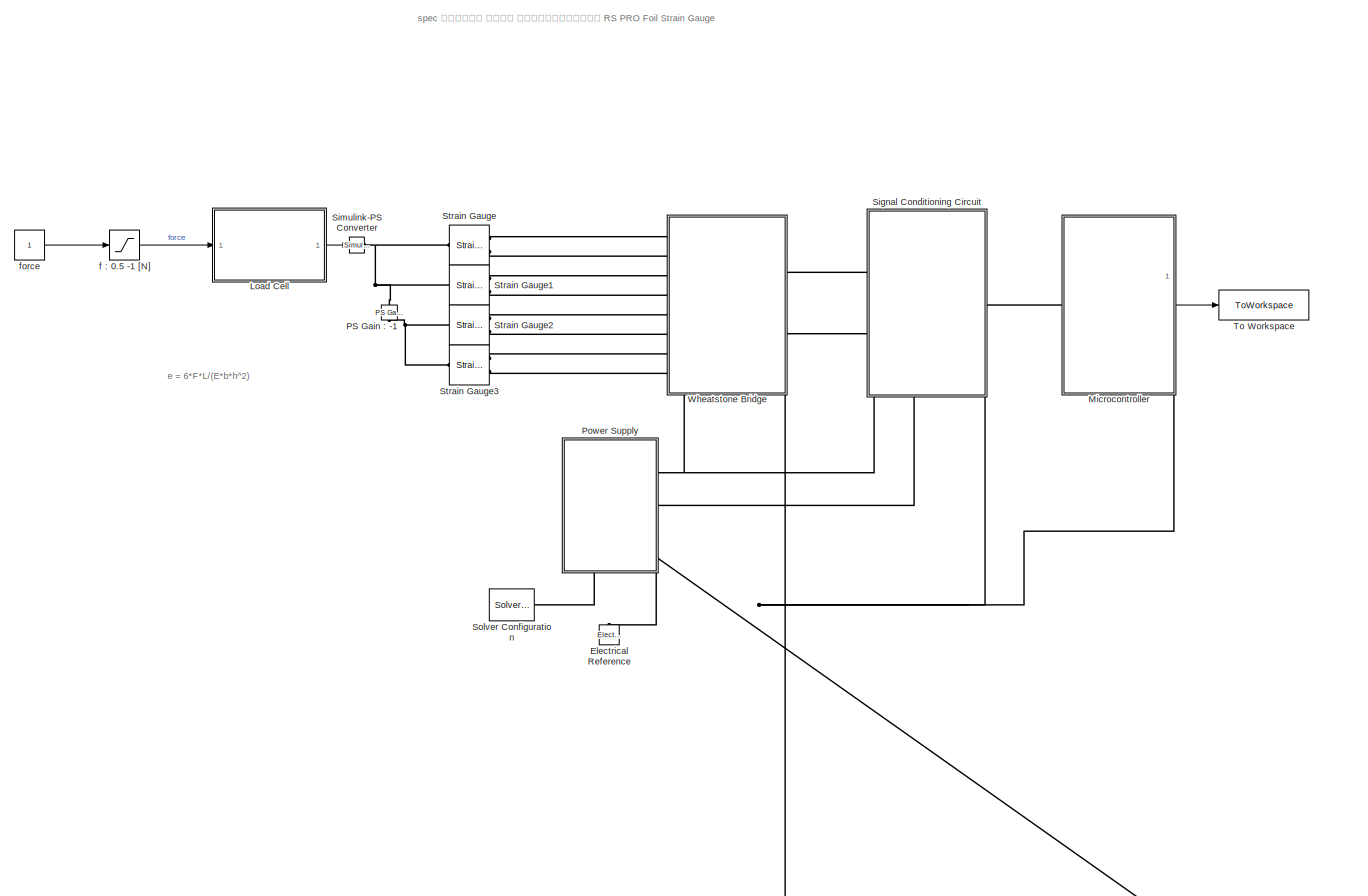
[diagram: root canvas - part 1/1, most of the canvas]
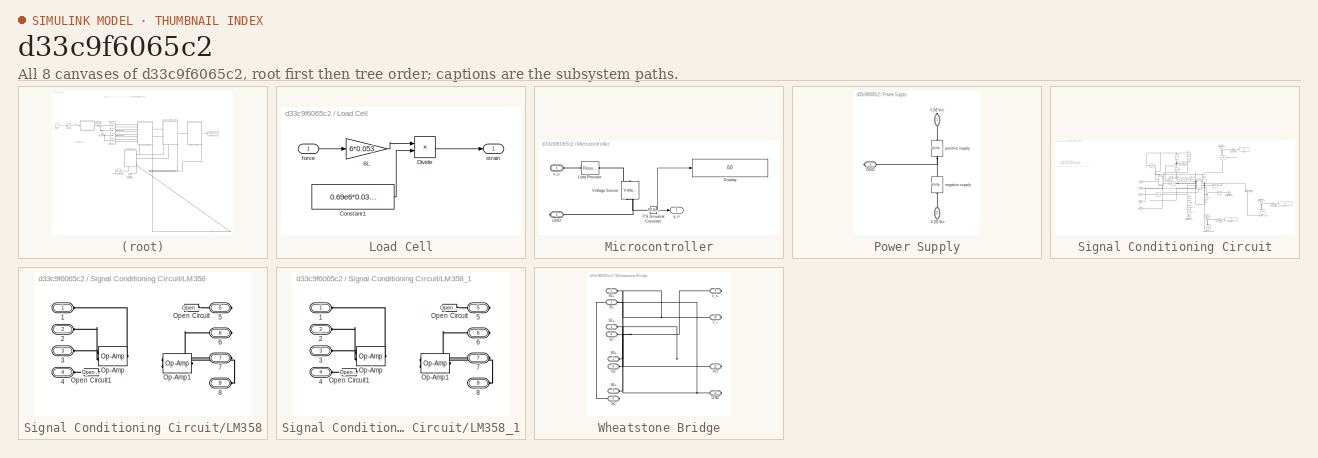
[diagram: thumbnail index - all 8 canvases of the model, root first then tree order]
MODEL slx_d33c9f6065c2
KIND model
CONFIG AbsTol = auto
CONFIG EnableMultiTasking = off
CONFIG FixedStep = auto
CONFIG MaxStep = auto
CONFIG MinStep = auto
CONFIG RelTol = 1e-3
CONFIG SampleTimeConstraint = Unconstrained
CONFIG SolverName = VariableStepAuto
CONFIG StartTime = 0.0
CONFIG StopTime = 10.0
BLOCK [Reference] Electrical Reference  REF=fl_lib/Electrical/Electrical Elements/Electrical Reference
  NameLocation = right
  Ports = [0, 0, 0, 0, 0, 1]
  SourceBlock = fl_lib/Electrical/Electrical Elements/Electrical Reference
  SourceProductBaseCode = SS
  SourceType = Electrical Reference
BLOCK [SubSystem] Load Cell
  Ports = [1, 1]
  RequestExecContextInheritance = off
BLOCK [Gain] Load Cell/6L
  Gain = 6*0.053
BLOCK [Constant] Load Cell/Constant1
  Value = 0.69e6*0.03*(0.022^2)
BLOCK [Product] Load Cell/Divide
  Inputs = */
  Ports = [2, 1]
BLOCK [Inport] Load Cell/force
BLOCK [Outport] Load Cell/strain
BLOCK [SubSystem] Microcontroller
  NameLocation = top
  PortSchema = {"entries":[{"content":{"sides":[{"content":{"connectorIds":["LConn1"]},"type":"ConnectorPlacement.EquallySpacedRectSide","uuid":"c8b31f12-36a9-42b7-b6a6-161bbb1c51b9"},{"content":{"connectorIds":["Out1"],"side":"RIGHT"},"type":"ConnectorPlacement.EquallySpacedRectSide","uuid":"adac1977-4ccc-4348-b89c-b647d4a007d6"},{"content":{"connectorIds":[],"side":"TOP"},"type":"ConnectorPlacement.EquallySpac...<+539ch>
  Ports = [0, 1, 0, 0, 0, 1, 1]
  RequestExecContextInheritance = off
BLOCK [Display] Microcontroller/Display
  Decimation = 1
  Ports = [1]
BLOCK [PMIOPort] Microcontroller/GND
  NameLocation = top
  Port = 2
  Side = Right
BLOCK [Reference] Microcontroller/Load Resistor   REF=ee_lib/Passive/Resistor
  Ports = [0, 0, 0, 0, 0, 1, 1]
  SourceBlock = ee_lib/Passive/Resistor
  SourceProductBaseCode = PS
  SourceType = Resistor
BLOCK [Reference] Microcontroller/PS-Simulink Converter  REF=nesl_utility/PS-Simulink
Converter
  Ports = [0, 1, 0, 0, 0, 1]
  SourceBlock = nesl_utility/PS-Simulink\nConverter
  SourceProductBaseCode = PW,SS
  SourceType = PS-Simulink\nConverter
BLOCK [Reference] Microcontroller/Voltage Sensor  REF=fl_lib/Electrical/Electrical Sensors/Voltage Sensor
  NameLocation = right
  Ports = [0, 0, 0, 0, 0, 1, 2]
  SourceBlock = fl_lib/Electrical/Electrical Sensors/Voltage Sensor
  SourceProductBaseCode = SS
  SourceType = Voltage Sensor
BLOCK [PMIOPort] Microcontroller/v_o
  NameLocation = top
  Side = Left
BLOCK [Outport] Microcontroller/y_o
BLOCK [Reference] PS Gain : -1  REF=fl_lib/Physical Signals/Functions/PS Gain
  NameLocation = left
  Ports = [0, 0, 0, 0, 0, 1, 1]
  SourceBlock = fl_lib/Physical Signals/Functions/PS Gain
  SourceProductBaseCode = SS
  SourceType = PS Gain
BLOCK [SubSystem] Power Supply
  NameLocation = left
  PortSchema = {"entries":[{"content":{"sides":[{"content":{"connectorIds":[]},"type":"ConnectorPlacement.EquallySpacedRectSide","uuid":"d484c286-8a66-4358-952e-0e35bb0e5568"},{"content":{"connectorIds":["RConn1","RConn2"],"side":"RIGHT"},"type":"ConnectorPlacement.EquallySpacedRectSide","uuid":"128e18dd-1804-4321-ac62-61acca0b62f5"},{"content":{"connectorIds":[],"side":"TOP"},"type":"ConnectorPlacement.EquallyS...<+542ch>
  Ports = [0, 0, 0, 0, 0, 0, 3]
  RequestExecContextInheritance = off
BLOCK [PMIOPort] Power Supply/-5 [V] Vcc
  Port = 2
  Side = Right
BLOCK [PMIOPort] Power Supply/5 [V] Vcc
  NameLocation = left
  Side = Right
BLOCK [PMIOPort] Power Supply/GND
  Port = 3
  Side = Right
BLOCK [Reference] Power Supply/negative supply  REF=ee_lib/Sources/Voltage Source
  NameLocation = left
  Ports = [0, 0, 0, 0, 0, 1, 1]
  SourceBlock = ee_lib/Sources/Voltage Source
  SourceProductBaseCode = PS
  SourceType = Voltage Source
BLOCK [Reference] Power Supply/positive supply  REF=ee_lib/Sources/Voltage Source
  NameLocation = left
  Ports = [0, 0, 0, 0, 0, 1, 1]
  SourceBlock = ee_lib/Sources/Voltage Source
  SourceProductBaseCode = PS
  SourceType = Voltage Source
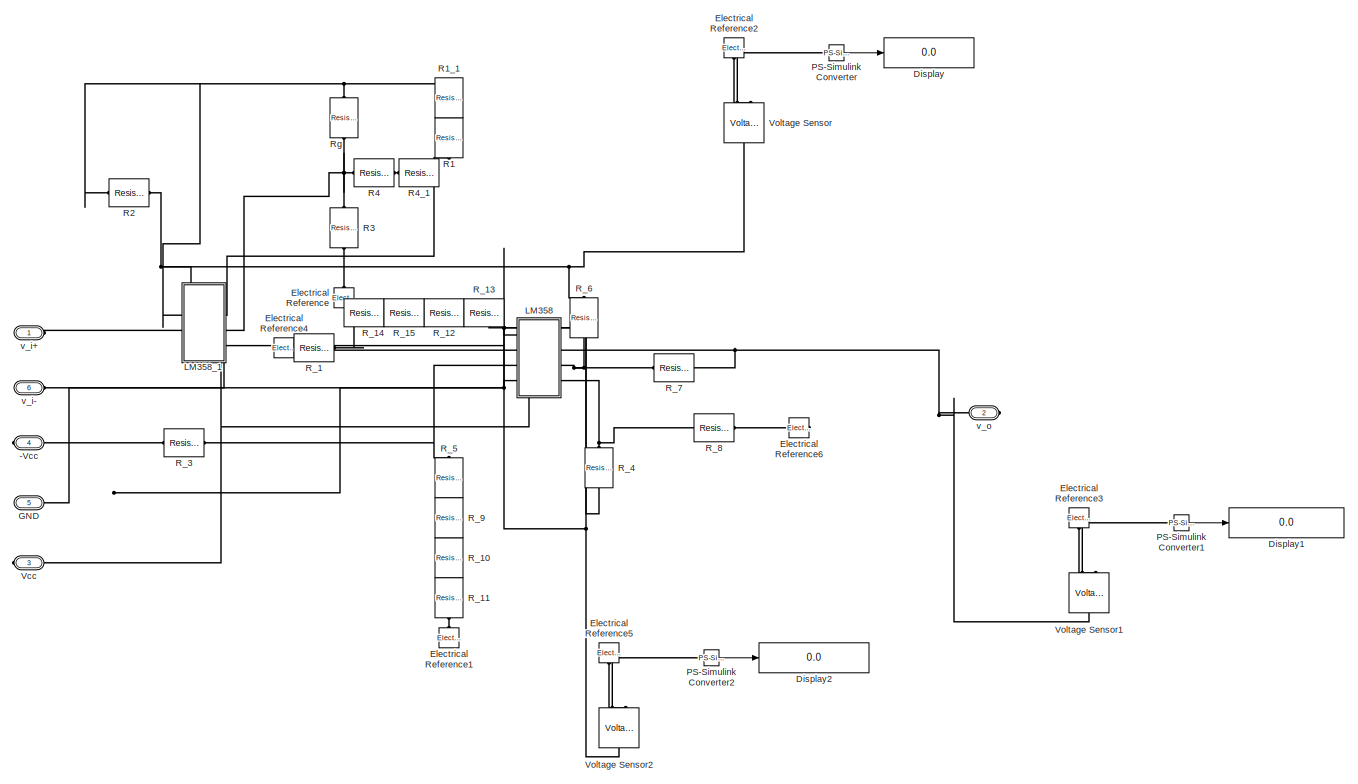
[diagram: Signal Conditioning Circuit - part 1/2, right side, full height]
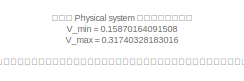
[diagram: Signal Conditioning Circuit - part 2/2, top left region]
BLOCK [SubSystem] Signal Conditioning Circuit
  NameLocation = top
  PortSchema = {"entries":[{"content":{"sides":[{"content":{"connectorIds":["LConn1","LConn2"]},"type":"ConnectorPlacement.EquallySpacedRectSide","uuid":"58874aca-5d10-42a9-8ce7-75e51f570882"},{"content":{"connectorIds":["RConn1"],"side":"RIGHT"},"type":"ConnectorPlacement.EquallySpacedRectSide","uuid":"2ca5ca46-eee6-4696-b8be-4fbc6f7a3b31"},{"content":{"connectorIds":[],"side":"TOP"},"type":"ConnectorPlacement....<+568ch>
  Ports = [0, 0, 0, 0, 0, 2, 4]
  RequestExecContextInheritance = off
BLOCK [PMIOPort] Signal Conditioning Circuit/-Vcc
  Port = 4
  Side = Right
BLOCK [Display] Signal Conditioning Circuit/Display
  Decimation = 1
  Format = long
  Ports = [1]
BLOCK [Display] Signal Conditioning Circuit/Display1
  Decimation = 1
  Format = long
  Ports = [1]
BLOCK [Display] Signal Conditioning Circuit/Display2
  Decimation = 1
  Format = long
  Ports = [1]
BLOCK [Reference] Signal Conditioning Circuit/Electrical Reference  REF=fl_lib/Electrical/Electrical Elements/Electrical Reference
  NameLocation = right
  Ports = [0, 0, 0, 0, 0, 1]
  SourceBlock = fl_lib/Electrical/Electrical Elements/Electrical Reference
  SourceProductBaseCode = SS
  SourceType = Electrical Reference
BLOCK [Reference] Signal Conditioning Circuit/Electrical Reference1  REF=fl_lib/Electrical/Electrical Elements/Electrical Reference
  NameLocation = right
  Ports = [0, 0, 0, 0, 0, 1]
  SourceBlock = fl_lib/Electrical/Electrical Elements/Electrical Reference
  SourceProductBaseCode = SS
  SourceType = Electrical Reference
BLOCK [Reference] Signal Conditioning Circuit/Electrical Reference2  REF=fl_lib/Electrical/Electrical Elements/Electrical Reference
  NameLocation = left
  Ports = [0, 0, 0, 0, 0, 1]
  SourceBlock = fl_lib/Electrical/Electrical Elements/Electrical Reference
  SourceProductBaseCode = SS
  SourceType = Electrical Reference
BLOCK [Reference] Signal Conditioning Circuit/Electrical Reference3  REF=fl_lib/Electrical/Electrical Elements/Electrical Reference
  NameLocation = left
  Ports = [0, 0, 0, 0, 0, 1]
  SourceBlock = fl_lib/Electrical/Electrical Elements/Electrical Reference
  SourceProductBaseCode = SS
  SourceType = Electrical Reference
BLOCK [Reference] Signal Conditioning Circuit/Electrical Reference4  REF=fl_lib/Electrical/Electrical Elements/Electrical Reference
  Ports = [0, 0, 0, 0, 0, 1]
  SourceBlock = fl_lib/Electrical/Electrical Elements/Electrical Reference
  SourceProductBaseCode = SS
  SourceType = Electrical Reference
BLOCK [Reference] Signal Conditioning Circuit/Electrical Reference5  REF=fl_lib/Electrical/Electrical Elements/Electrical Reference
  NameLocation = left
  Ports = [0, 0, 0, 0, 0, 1]
  SourceBlock = fl_lib/Electrical/Electrical Elements/Electrical Reference
  SourceProductBaseCode = SS
  SourceType = Electrical Reference
BLOCK [Reference] Signal Conditioning Circuit/Electrical Reference6  REF=fl_lib/Electrical/Electrical Elements/Electrical Reference
  NameLocation = top
  Ports = [0, 0, 0, 0, 0, 1]
  SourceBlock = fl_lib/Electrical/Electrical Elements/Electrical Reference
  SourceProductBaseCode = SS
  SourceType = Electrical Reference
BLOCK [PMIOPort] Signal Conditioning Circuit/GND
  Port = 5
  Side = Right
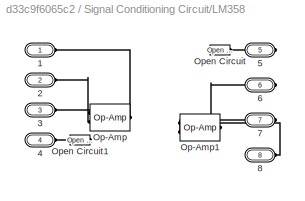
BLOCK [SubSystem] Signal Conditioning Circuit/LM358
  Ports = [0, 0, 0, 0, 0, 4, 4]
  RequestExecContextInheritance = off
BLOCK [PMIOPort] Signal Conditioning Circuit/LM358/1
  Side = Left
BLOCK [PMIOPort] Signal Conditioning Circuit/LM358/2
  Port = 2
  Side = Left
BLOCK [PMIOPort] Signal Conditioning Circuit/LM358/3
  Port = 3
  Side = Left
BLOCK [PMIOPort] Signal Conditioning Circuit/LM358/4
  Port = 4
  Side = Left
BLOCK [PMIOPort] Signal Conditioning Circuit/LM358/5
  Port = 5
  Side = Right
BLOCK [PMIOPort] Signal Conditioning Circuit/LM358/6
  Port = 6
  Side = Right
BLOCK [PMIOPort] Signal Conditioning Circuit/LM358/7
  Port = 7
  Side = Right
BLOCK [PMIOPort] Signal Conditioning Circuit/LM358/8
  Port = 8
  Side = Right
BLOCK [Reference] Signal Conditioning Circuit/LM358/Op-Amp  REF=fl_lib/Electrical/Electrical Elements/Op-Amp
  Ports = [0, 0, 0, 0, 0, 2, 1]
  SourceBlock = fl_lib/Electrical/Electrical Elements/Op-Amp
  SourceProductBaseCode = SS
  SourceType = Op-Amp
BLOCK [Reference] Signal Conditioning Circuit/LM358/Op-Amp1  REF=fl_lib/Electrical/Electrical Elements/Op-Amp
  NameLocation = top
  Ports = [0, 0, 0, 0, 0, 2, 1]
  SourceBlock = fl_lib/Electrical/Electrical Elements/Op-Amp
  SourceProductBaseCode = SS
  SourceType = Op-Amp
BLOCK [Reference] Signal Conditioning Circuit/LM358/Open Circuit  REF=fl_lib/Electrical/Electrical Elements/Open Circuit
  Ports = [0, 0, 0, 0, 0, 1]
  SourceBlock = fl_lib/Electrical/Electrical Elements/Open Circuit
  SourceProductBaseCode = SS
  SourceType = Open Circuit
BLOCK [Reference] Signal Conditioning Circuit/LM358/Open Circuit1  REF=fl_lib/Electrical/Electrical Elements/Open Circuit
  NameLocation = top
  Ports = [0, 0, 0, 0, 0, 1]
  SourceBlock = fl_lib/Electrical/Electrical Elements/Open Circuit
  SourceProductBaseCode = SS
  SourceType = Open Circuit
BLOCK [SubSystem] Signal Conditioning Circuit/LM358_1
  Ports = [0, 0, 0, 0, 0, 4, 4]
  RequestExecContextInheritance = off
BLOCK [PMIOPort] Signal Conditioning Circuit/LM358_1/1
  Side = Left
BLOCK [PMIOPort] Signal Conditioning Circuit/LM358_1/2
  Port = 2
  Side = Left
BLOCK [PMIOPort] Signal Conditioning Circuit/LM358_1/3
  Port = 3
  Side = Left
BLOCK [PMIOPort] Signal Conditioning Circuit/LM358_1/4
  Port = 4
  Side = Left
BLOCK [PMIOPort] Signal Conditioning Circuit/LM358_1/5
  Port = 5
  Side = Right
BLOCK [PMIOPort] Signal Conditioning Circuit/LM358_1/6
  Port = 6
  Side = Right
BLOCK [PMIOPort] Signal Conditioning Circuit/LM358_1/7
  Port = 7
  Side = Right
BLOCK [PMIOPort] Signal Conditioning Circuit/LM358_1/8
  Port = 8
  Side = Right
BLOCK [Reference] Signal Conditioning Circuit/LM358_1/Op-Amp  REF=fl_lib/Electrical/Electrical Elements/Op-Amp
  Ports = [0, 0, 0, 0, 0, 2, 1]
  SourceBlock = fl_lib/Electrical/Electrical Elements/Op-Amp
  SourceProductBaseCode = SS
  SourceType = Op-Amp
BLOCK [Reference] Signal Conditioning Circuit/LM358_1/Op-Amp1  REF=fl_lib/Electrical/Electrical Elements/Op-Amp
  NameLocation = top
  Ports = [0, 0, 0, 0, 0, 2, 1]
  SourceBlock = fl_lib/Electrical/Electrical Elements/Op-Amp
  SourceProductBaseCode = SS
  SourceType = Op-Amp
BLOCK [Reference] Signal Conditioning Circuit/LM358_1/Open Circuit  REF=fl_lib/Electrical/Electrical Elements/Open Circuit
  Ports = [0, 0, 0, 0, 0, 1]
  SourceBlock = fl_lib/Electrical/Electrical Elements/Open Circuit
  SourceProductBaseCode = SS
  SourceType = Open Circuit
BLOCK [Reference] Signal Conditioning Circuit/LM358_1/Open Circuit1  REF=fl_lib/Electrical/Electrical Elements/Open Circuit
  NameLocation = top
  Ports = [0, 0, 0, 0, 0, 1]
  SourceBlock = fl_lib/Electrical/Electrical Elements/Open Circuit
  SourceProductBaseCode = SS
  SourceType = Open Circuit
BLOCK [Reference] Signal Conditioning Circuit/PS-Simulink Converter  REF=nesl_utility/PS-Simulink
Converter
  Ports = [0, 1, 0, 0, 0, 1]
  SourceBlock = nesl_utility/PS-Simulink\nConverter
  SourceProductBaseCode = PW,SS
  SourceType = PS-Simulink\nConverter
BLOCK [Reference] Signal Conditioning Circuit/PS-Simulink Converter1  REF=nesl_utility/PS-Simulink
Converter
  Ports = [0, 1, 0, 0, 0, 1]
  SourceBlock = nesl_utility/PS-Simulink\nConverter
  SourceProductBaseCode = PW,SS
  SourceType = PS-Simulink\nConverter
BLOCK [Reference] Signal Conditioning Circuit/PS-Simulink Converter2  REF=nesl_utility/PS-Simulink
Converter
  Ports = [0, 1, 0, 0, 0, 1]
  SourceBlock = nesl_utility/PS-Simulink\nConverter
  SourceProductBaseCode = PW,SS
  SourceType = PS-Simulink\nConverter
BLOCK [Reference] Signal Conditioning Circuit/R1  REF=fl_lib/Electrical/Electrical Elements/Resistor
  NameLocation = right
  Ports = [0, 0, 0, 0, 0, 1, 1]
  SourceBlock = fl_lib/Electrical/Electrical Elements/Resistor
  SourceProductBaseCode = SS
  SourceType = Resistor
BLOCK [Reference] Signal Conditioning Circuit/R1_1  REF=fl_lib/Electrical/Electrical Elements/Resistor
  NameLocation = right
  Ports = [0, 0, 0, 0, 0, 1, 1]
  SourceBlock = fl_lib/Electrical/Electrical Elements/Resistor
  SourceProductBaseCode = SS
  SourceType = Resistor
BLOCK [Reference] Signal Conditioning Circuit/R2  REF=fl_lib/Electrical/Electrical Elements/Resistor
  Ports = [0, 0, 0, 0, 0, 1, 1]
  SourceBlock = fl_lib/Electrical/Electrical Elements/Resistor
  SourceProductBaseCode = SS
  SourceType = Resistor
BLOCK [Reference] Signal Conditioning Circuit/R3  REF=fl_lib/Electrical/Electrical Elements/Resistor
  NameLocation = right
  Ports = [0, 0, 0, 0, 0, 1, 1]
  SourceBlock = fl_lib/Electrical/Electrical Elements/Resistor
  SourceProductBaseCode = SS
  SourceType = Resistor
BLOCK [Reference] Signal Conditioning Circuit/R4  REF=fl_lib/Electrical/Electrical Elements/Resistor
  Ports = [0, 0, 0, 0, 0, 1, 1]
  SourceBlock = fl_lib/Electrical/Electrical Elements/Resistor
  SourceProductBaseCode = SS
  SourceType = Resistor
BLOCK [Reference] Signal Conditioning Circuit/R4_1  REF=fl_lib/Electrical/Electrical Elements/Resistor
  Ports = [0, 0, 0, 0, 0, 1, 1]
  SourceBlock = fl_lib/Electrical/Electrical Elements/Resistor
  SourceProductBaseCode = SS
  SourceType = Resistor
BLOCK [Reference] Signal Conditioning Circuit/R_1  REF=fl_lib/Electrical/Electrical Elements/Resistor
  Ports = [0, 0, 0, 0, 0, 1, 1]
  SourceBlock = fl_lib/Electrical/Electrical Elements/Resistor
  SourceProductBaseCode = SS
  SourceType = Resistor
BLOCK [Reference] Signal Conditioning Circuit/R_10  REF=fl_lib/Electrical/Electrical Elements/Resistor
  NameLocation = left
  Ports = [0, 0, 0, 0, 0, 1, 1]
  SourceBlock = fl_lib/Electrical/Electrical Elements/Resistor
  SourceProductBaseCode = SS
  SourceType = Resistor
BLOCK [Reference] Signal Conditioning Circuit/R_11  REF=fl_lib/Electrical/Electrical Elements/Resistor
  NameLocation = left
  Ports = [0, 0, 0, 0, 0, 1, 1]
  SourceBlock = fl_lib/Electrical/Electrical Elements/Resistor
  SourceProductBaseCode = SS
  SourceType = Resistor
BLOCK [Reference] Signal Conditioning Circuit/R_12  REF=fl_lib/Electrical/Electrical Elements/Resistor
  Ports = [0, 0, 0, 0, 0, 1, 1]
  SourceBlock = fl_lib/Electrical/Electrical Elements/Resistor
  SourceProductBaseCode = SS
  SourceType = Resistor
BLOCK [Reference] Signal Conditioning Circuit/R_13  REF=fl_lib/Electrical/Electrical Elements/Resistor
  Ports = [0, 0, 0, 0, 0, 1, 1]
  SourceBlock = fl_lib/Electrical/Electrical Elements/Resistor
  SourceProductBaseCode = SS
  SourceType = Resistor
BLOCK [Reference] Signal Conditioning Circuit/R_14  REF=fl_lib/Electrical/Electrical Elements/Resistor
  Ports = [0, 0, 0, 0, 0, 1, 1]
  SourceBlock = fl_lib/Electrical/Electrical Elements/Resistor
  SourceProductBaseCode = SS
  SourceType = Resistor
BLOCK [Reference] Signal Conditioning Circuit/R_15  REF=fl_lib/Electrical/Electrical Elements/Resistor
  Ports = [0, 0, 0, 0, 0, 1, 1]
  SourceBlock = fl_lib/Electrical/Electrical Elements/Resistor
  SourceProductBaseCode = SS
  SourceType = Resistor
BLOCK [Reference] Signal Conditioning Circuit/R_3  REF=fl_lib/Electrical/Electrical Elements/Resistor
  Ports = [0, 0, 0, 0, 0, 1, 1]
  SourceBlock = fl_lib/Electrical/Electrical Elements/Resistor
  SourceProductBaseCode = SS
  SourceType = Resistor
BLOCK [Reference] Signal Conditioning Circuit/R_4  REF=fl_lib/Electrical/Electrical Elements/Resistor
  NameLocation = right
  Ports = [0, 0, 0, 0, 0, 1, 1]
  SourceBlock = fl_lib/Electrical/Electrical Elements/Resistor
  SourceProductBaseCode = SS
  SourceType = Resistor
BLOCK [Reference] Signal Conditioning Circuit/R_5  REF=fl_lib/Electrical/Electrical Elements/Resistor
  NameLocation = left
  Ports = [0, 0, 0, 0, 0, 1, 1]
  SourceBlock = fl_lib/Electrical/Electrical Elements/Resistor
  SourceProductBaseCode = SS
  SourceType = Resistor
BLOCK [Reference] Signal Conditioning Circuit/R_6  REF=fl_lib/Electrical/Electrical Elements/Resistor
  NameLocation = left
  Ports = [0, 0, 0, 0, 0, 1, 1]
  SourceBlock = fl_lib/Electrical/Electrical Elements/Resistor
  SourceProductBaseCode = SS
  SourceType = Resistor
BLOCK [Reference] Signal Conditioning Circuit/R_7  REF=fl_lib/Electrical/Electrical Elements/Resistor
  Ports = [0, 0, 0, 0, 0, 1, 1]
  SourceBlock = fl_lib/Electrical/Electrical Elements/Resistor
  SourceProductBaseCode = SS
  SourceType = Resistor
BLOCK [Reference] Signal Conditioning Circuit/R_8  REF=fl_lib/Electrical/Electrical Elements/Resistor
  Ports = [0, 0, 0, 0, 0, 1, 1]
  SourceBlock = fl_lib/Electrical/Electrical Elements/Resistor
  SourceProductBaseCode = SS
  SourceType = Resistor
BLOCK [Reference] Signal Conditioning Circuit/R_9  REF=fl_lib/Electrical/Electrical Elements/Resistor
  NameLocation = left
  Ports = [0, 0, 0, 0, 0, 1, 1]
  SourceBlock = fl_lib/Electrical/Electrical Elements/Resistor
  SourceProductBaseCode = SS
  SourceType = Resistor
BLOCK [Reference] Signal Conditioning Circuit/Rg  REF=fl_lib/Electrical/Electrical Elements/Resistor
  NameLocation = right
  Ports = [0, 0, 0, 0, 0, 1, 1]
  SourceBlock = fl_lib/Electrical/Electrical Elements/Resistor
  SourceProductBaseCode = SS
  SourceType = Resistor
BLOCK [PMIOPort] Signal Conditioning Circuit/Vcc
  Port = 3
  Side = Right
BLOCK [Reference] Signal Conditioning Circuit/Voltage Sensor  REF=fl_lib/Electrical/Electrical Sensors/Voltage Sensor
  NameLocation = left
  Ports = [0, 0, 0, 0, 0, 1, 2]
  SourceBlock = fl_lib/Electrical/Electrical Sensors/Voltage Sensor
  SourceProductBaseCode = SS
  SourceType = Voltage Sensor
BLOCK [Reference] Signal Conditioning Circuit/Voltage Sensor1  REF=fl_lib/Electrical/Electrical Sensors/Voltage Sensor
  NameLocation = left
  Ports = [0, 0, 0, 0, 0, 1, 2]
  SourceBlock = fl_lib/Electrical/Electrical Sensors/Voltage Sensor
  SourceProductBaseCode = SS
  SourceType = Voltage Sensor
BLOCK [Reference] Signal Conditioning Circuit/Voltage Sensor2  REF=fl_lib/Electrical/Electrical Sensors/Voltage Sensor
  NameLocation = left
  Ports = [0, 0, 0, 0, 0, 1, 2]
  SourceBlock = fl_lib/Electrical/Electrical Sensors/Voltage Sensor
  SourceProductBaseCode = SS
  SourceType = Voltage Sensor
BLOCK [PMIOPort] Signal Conditioning Circuit/v_i+
  Side = Left
BLOCK [PMIOPort] Signal Conditioning Circuit/v_i-
  Port = 6
  Side = Left
BLOCK [PMIOPort] Signal Conditioning Circuit/v_o
  Port = 2
  Side = Right
BLOCK [Reference] Simulink-PS Converter  REF=nesl_utility/Simulink-PS
Converter
  Ports = [1, 0, 0, 0, 0, 0, 1]
  SourceBlock = nesl_utility/Simulink-PS\nConverter
  SourceProductBaseCode = PW,SS
  SourceType = Simulink-PS\nConverter
BLOCK [Reference] Solver Configuration  REF=nesl_utility/Solver
Configuration
  Ports = [0, 0, 0, 0, 0, 0, 1]
  SourceBlock = nesl_utility/Solver\nConfiguration
  SourceProductBaseCode = PW,SS
  SourceType = Solver\nConfiguration
BLOCK [Reference] Strain Gauge  REF=ee_lib/Sensors &
Transducers/Strain Gauge
  Ports = [0, 0, 0, 0, 0, 1, 2]
  SourceBlock = ee_lib/Sensors &\nTransducers/Strain Gauge
  SourceProductBaseCode = PS
  SourceType = Strain Gauge
BLOCK [Reference] Strain Gauge1  REF=ee_lib/Sensors &
Transducers/Strain Gauge
  Ports = [0, 0, 0, 0, 0, 1, 2]
  SourceBlock = ee_lib/Sensors &\nTransducers/Strain Gauge
  SourceProductBaseCode = PS
  SourceType = Strain Gauge
BLOCK [Reference] Strain Gauge2  REF=ee_lib/Sensors &
Transducers/Strain Gauge
  Ports = [0, 0, 0, 0, 0, 1, 2]
  SourceBlock = ee_lib/Sensors &\nTransducers/Strain Gauge
  SourceProductBaseCode = PS
  SourceType = Strain Gauge
BLOCK [Reference] Strain Gauge3  REF=ee_lib/Sensors &
Transducers/Strain Gauge
  Ports = [0, 0, 0, 0, 0, 1, 2]
  SourceBlock = ee_lib/Sensors &\nTransducers/Strain Gauge
  SourceProductBaseCode = PS
  SourceType = Strain Gauge
BLOCK [ToWorkspace] To Workspace
  FixptAsFi = on
  MaxDataPoints = inf
  Ports = [1]
  SampleTime = -1
  SaveFormat = Timeseries
  VariableName = simout
BLOCK [SubSystem] Wheatstone Bridge
  NameLocation = top
  PortSchema = {"entries":[{"content":{"sides":[{"content":{"connectorIds":["LConn1","LConn2","LConn3","LConn4","LConn5","LConn6","LConn7","LConn8"]},"type":"ConnectorPlacement.EquallySpacedRectSide","uuid":"a9dbb70d-760b-4500-9259-85d6974534e7"},{"content":{"connectorIds":["RConn1","RConn2"],"side":"RIGHT"},"type":"ConnectorPlacement.EquallySpacedRectSide","uuid":"81dfe94d-60fd-4028-8d4c-e0668dffe582"},{"conten...<+622ch>
  Ports = [0, 0, 0, 0, 0, 8, 4]
  RequestExecContextInheritance = off
BLOCK [PMIOPort] Wheatstone Bridge/GND
  Port = 12
  Side = Right
BLOCK [PMIOPort] Wheatstone Bridge/S1+
  NameLocation = top
  Side = Left
BLOCK [PMIOPort] Wheatstone Bridge/S1-
  Port = 2
  Side = Left
BLOCK [PMIOPort] Wheatstone Bridge/S2+
  NameLocation = top
  Port = 3
  Side = Left
BLOCK [PMIOPort] Wheatstone Bridge/S2-
  Port = 4
  Side = Left
BLOCK [PMIOPort] Wheatstone Bridge/S3+
  NameLocation = top
  Port = 5
  Side = Left
BLOCK [PMIOPort] Wheatstone Bridge/S3-
  Port = 6
  Side = Left
BLOCK [PMIOPort] Wheatstone Bridge/S4+
  NameLocation = top
  Port = 7
  Side = Left
BLOCK [PMIOPort] Wheatstone Bridge/S4-
  Port = 8
  Side = Left
BLOCK [PMIOPort] Wheatstone Bridge/Vcc
  Port = 11
  Side = Right
BLOCK [PMIOPort] Wheatstone Bridge/v_i+
  Port = 9
  Side = Right
BLOCK [PMIOPort] Wheatstone Bridge/v_i-
  Port = 10
  Side = Right
BLOCK [Saturate] f : 0.5 -1 [N]
  LowerLimit = 0.5
  UpperLimit = 1
BLOCK [Constant] force
ANNOTATION (root): spec ตามนี้ ครับ ปรับให้หน่อย RS PRO Foil Strain Gauge
ANNOTATION (root): e = 6*F*L/(E*b*h^2)
ANNOTATION Signal Conditioning Circuit: จาก Physical system เราจะได้ V_min = 0.15870164091508 V_max = 0.31740328183016 เมื่อนำมาคิดสมการเพื่อขยายจะได้เป็นสมการ 31.505986137(V-0.15870164091508) เริ่มต้น SCC ด้วยวงจร Amplification โดย Lm358_1 จะต่อแบบ Two op-amp differential amplifier โดยที่ใช้ Gain = 31.5 เนื่องจากค่า Gain ที่คำนวณได้มีจุดทศนิยมมากจนยากที่จะออกแบบวงจรให้ได้ค่าที่ตรงกัน โดยที่ R1และR4 = 60K, R2และR3 = 30K, Rg = 2k V out ท...<+517ch>
LINE Load Cell/6L:1 -> Load Cell/Divide:1
LINE Load Cell/Constant1:1 -> Load Cell/Divide:2
LINE Load Cell/Divide:1 -> Load Cell/strain:1
LINE Load Cell/force:1 -> Load Cell/6L:1
LINE Load Cell:1 -> Simulink-PS Converter:1
NET Microcontroller/PS-Simulink Converter:1 -> Microcontroller/Display:1, Microcontroller/y_o:1
LINE Microcontroller:1 -> To Workspace:1
LINE Signal Conditioning Circuit/PS-Simulink Converter1:1 -> Signal Conditioning Circuit/Display1:1
LINE Signal Conditioning Circuit/PS-Simulink Converter2:1 -> Signal Conditioning Circuit/Display2:1
LINE Signal Conditioning Circuit/PS-Simulink Converter:1 -> Signal Conditioning Circuit/Display:1
LINE f : 0.5 -1 [N]:1 -> Load Cell:1
LINE force:1 -> f : 0.5 -1 [N]:1
PNET net1: Electrical Reference:LConn1 -- Microcontroller:RConn1 -- Power Supply:RConn3 -- Signal Conditioning Circuit:RConn4 -- Solver Configuration:RConn1 -- Wheatstone Bridge:RConn4
PLINE Microcontroller/GND:RConn1 -- Microcontroller/Voltage Sensor:RConn2
PLINE Microcontroller/Load Resistor :LConn1 -- Microcontroller/v_o:RConn1
PLINE Microcontroller/Load Resistor :RConn1 -- Microcontroller/Voltage Sensor:LConn1
PLINE Microcontroller/PS-Simulink Converter:LConn1 -- Microcontroller/Voltage Sensor:RConn1
PLINE Microcontroller:LConn1 -- Signal Conditioning Circuit:RConn1
PNET net2: PS Gain : -1:LConn1 -- Simulink-PS Converter:RConn1 -- Strain Gauge1:LConn1 -- Strain Gauge:LConn1
PNET net3: PS Gain : -1:RConn1 -- Strain Gauge2:LConn1 -- Strain Gauge3:LConn1
PLINE Power Supply/-5 [V] Vcc:RConn1 -- Power Supply/negative supply:RConn1
PLINE Power Supply/5 [V] Vcc:RConn1 -- Power Supply/positive supply:LConn1
PNET net4: Power Supply/GND:RConn1 -- Power Supply/negative supply:LConn1 -- Power Supply/positive supply:RConn1
PNET net5: Power Supply:RConn1 -- Signal Conditioning Circuit:RConn2 -- Wheatstone Bridge:RConn3
PLINE Power Supply:RConn2 -- Signal Conditioning Circuit:RConn3
PLINE Signal Conditioning Circuit/-Vcc:RConn1 -- Signal Conditioning Circuit/R_3:LConn1
PLINE Signal Conditioning Circuit/Electrical Reference1:LConn1 -- Signal Conditioning Circuit/R_11:RConn1
PLINE Signal Conditioning Circuit/Electrical Reference2:LConn1 -- Signal Conditioning Circuit/Voltage Sensor:RConn2
PLINE Signal Conditioning Circuit/Electrical Reference3:LConn1 -- Signal Conditioning Circuit/Voltage Sensor1:RConn2
PLINE Signal Conditioning Circuit/Electrical Reference4:LConn1 -- Signal Conditioning Circuit/R_1:LConn1
PLINE Signal Conditioning Circuit/Electrical Reference5:LConn1 -- Signal Conditioning Circuit/Voltage Sensor2:RConn2
PLINE Signal Conditioning Circuit/Electrical Reference6:LConn1 -- Signal Conditioning Circuit/R_8:RConn1
PLINE Signal Conditioning Circuit/Electrical Reference:LConn1 -- Signal Conditioning Circuit/R3:LConn1
PNET net6: Signal Conditioning Circuit/GND:RConn1 -- Signal Conditioning Circuit/LM358:LConn4 -- Signal Conditioning Circuit/LM358_1:LConn4
PLINE Signal Conditioning Circuit/LM358/1:RConn1 -- Signal Conditioning Circuit/LM358/Op-Amp:RConn1
PLINE Signal Conditioning Circuit/LM358/2:RConn1 -- Signal Conditioning Circuit/LM358/Op-Amp:LConn2
PLINE Signal Conditioning Circuit/LM358/3:RConn1 -- Signal Conditioning Circuit/LM358/Op-Amp:LConn1
PLINE Signal Conditioning Circuit/LM358/4:RConn1 -- Signal Conditioning Circuit/LM358/Open Circuit1:LConn1
PLINE Signal Conditioning Circuit/LM358/5:RConn1 -- Signal Conditioning Circuit/LM358/Open Circuit:LConn1
PLINE Signal Conditioning Circuit/LM358/6:RConn1 -- Signal Conditioning Circuit/LM358/Op-Amp1:RConn1
PLINE Signal Conditioning Circuit/LM358/7:RConn1 -- Signal Conditioning Circuit/LM358/Op-Amp1:LConn2
PLINE Signal Conditioning Circuit/LM358/8:RConn1 -- Signal Conditioning Circuit/LM358/Op-Amp1:LConn1
PNET net7: Signal Conditioning Circuit/LM358:LConn1 -- Signal Conditioning Circuit/R_13:RConn1 -- Signal Conditioning Circuit/R_4:LConn1 -- Signal Conditioning Circuit/Voltage Sensor2:LConn1
PNET net8: Signal Conditioning Circuit/LM358:LConn2 -- Signal Conditioning Circuit/R_14:LConn1 -- Signal Conditioning Circuit/R_1:RConn1
PNET net9: Signal Conditioning Circuit/LM358:LConn3 -- Signal Conditioning Circuit/R_3:RConn1 -- Signal Conditioning Circuit/R_5:LConn1
PNET net10: Signal Conditioning Circuit/LM358:RConn1 -- Signal Conditioning Circuit/LM358_1:RConn1 -- Signal Conditioning Circuit/Vcc:RConn1
PNET net11: Signal Conditioning Circuit/LM358:RConn2 -- Signal Conditioning Circuit/R_7:RConn1 -- Signal Conditioning Circuit/Voltage Sensor1:LConn1 -- Signal Conditioning Circuit/v_o:RConn1
PNET net12: Signal Conditioning Circuit/LM358:RConn3 -- Signal Conditioning Circuit/R_6:RConn1 -- Signal Conditioning Circuit/R_7:LConn1
PNET net13: Signal Conditioning Circuit/LM358:RConn4 -- Signal Conditioning Circuit/R_4:RConn1 -- Signal Conditioning Circuit/R_8:LConn1
PLINE Signal Conditioning Circuit/LM358_1/1:RConn1 -- Signal Conditioning Circuit/LM358_1/Op-Amp:RConn1
PLINE Signal Conditioning Circuit/LM358_1/2:RConn1 -- Signal Conditioning Circuit/LM358_1/Op-Amp:LConn2
PLINE Signal Conditioning Circuit/LM358_1/3:RConn1 -- Signal Conditioning Circuit/LM358_1/Op-Amp:LConn1
PLINE Signal Conditioning Circuit/LM358_1/4:RConn1 -- Signal Conditioning Circuit/LM358_1/Open Circuit1:LConn1
PLINE Signal Conditioning Circuit/LM358_1/5:RConn1 -- Signal Conditioning Circuit/LM358_1/Open Circuit:LConn1
PLINE Signal Conditioning Circuit/LM358_1/6:RConn1 -- Signal Conditioning Circuit/LM358_1/Op-Amp1:RConn1
PLINE Signal Conditioning Circuit/LM358_1/7:RConn1 -- Signal Conditioning Circuit/LM358_1/Op-Amp1:LConn2
PLINE Signal Conditioning Circuit/LM358_1/8:RConn1 -- Signal Conditioning Circuit/LM358_1/Op-Amp1:LConn1
PNET net14: Signal Conditioning Circuit/LM358_1:LConn1 -- Signal Conditioning Circuit/R2:RConn1 -- Signal Conditioning Circuit/R_6:LConn1 -- Signal Conditioning Circuit/Voltage Sensor:LConn1
PNET net15: Signal Conditioning Circuit/LM358_1:LConn2 -- Signal Conditioning Circuit/R1_1:RConn1 -- Signal Conditioning Circuit/R2:LConn1 -- Signal Conditioning Circuit/Rg:RConn1
PLINE Signal Conditioning Circuit/LM358_1:LConn3 -- Signal Conditioning Circuit/v_i+:RConn1
PNET net16: Signal Conditioning Circuit/LM358_1:RConn2 -- Signal Conditioning Circuit/R1:LConn1 -- Signal Conditioning Circuit/R4_1:RConn1
PNET net17: Signal Conditioning Circuit/LM358_1:RConn3 -- Signal Conditioning Circuit/R3:RConn1 -- Signal Conditioning Circuit/R4:LConn1 -- Signal Conditioning Circuit/Rg:LConn1
PLINE Signal Conditioning Circuit/LM358_1:RConn4 -- Signal Conditioning Circuit/v_i-:RConn1
PLINE Signal Conditioning Circuit/PS-Simulink Converter1:LConn1 -- Signal Conditioning Circuit/Voltage Sensor1:RConn1
PLINE Signal Conditioning Circuit/PS-Simulink Converter2:LConn1 -- Signal Conditioning Circuit/Voltage Sensor2:RConn1
PLINE Signal Conditioning Circuit/PS-Simulink Converter:LConn1 -- Signal Conditioning Circuit/Voltage Sensor:RConn1
PLINE Signal Conditioning Circuit/R1:RConn1 -- Signal Conditioning Circuit/R1_1:LConn1
PLINE Signal Conditioning Circuit/R4:RConn1 -- Signal Conditioning Circuit/R4_1:LConn1
PLINE Signal Conditioning Circuit/R_10:LConn1 -- Signal Conditioning Circuit/R_9:RConn1
PLINE Signal Conditioning Circuit/R_10:RConn1 -- Signal Conditioning Circuit/R_11:LConn1
PLINE Signal Conditioning Circuit/R_12:LConn1 -- Signal Conditioning Circuit/R_15:RConn1
PLINE Signal Conditioning Circuit/R_12:RConn1 -- Signal Conditioning Circuit/R_13:LConn1
PLINE Signal Conditioning Circuit/R_14:RConn1 -- Signal Conditioning Circuit/R_15:LConn1
PLINE Signal Conditioning Circuit/R_5:RConn1 -- Signal Conditioning Circuit/R_9:LConn1
PLINE Signal Conditioning Circuit:LConn1 -- Wheatstone Bridge:RConn1
PLINE Signal Conditioning Circuit:LConn2 -- Wheatstone Bridge:RConn2
PLINE Strain Gauge1:RConn1 -- Wheatstone Bridge:LConn3
PLINE Strain Gauge1:RConn2 -- Wheatstone Bridge:LConn4
PLINE Strain Gauge2:RConn1 -- Wheatstone Bridge:LConn5
PLINE Strain Gauge2:RConn2 -- Wheatstone Bridge:LConn6
PLINE Strain Gauge3:RConn1 -- Wheatstone Bridge:LConn7
PLINE Strain Gauge3:RConn2 -- Wheatstone Bridge:LConn8
PLINE Strain Gauge:RConn1 -- Wheatstone Bridge:LConn1
PLINE Strain Gauge:RConn2 -- Wheatstone Bridge:LConn2
PNET net18: Wheatstone Bridge/GND:RConn1 -- Wheatstone Bridge/S1-:RConn1 -- Wheatstone Bridge/S4-:RConn1
PNET net19: Wheatstone Bridge/S1+:RConn1 -- Wheatstone Bridge/S3-:RConn1 -- Wheatstone Bridge/v_i-:RConn1
PNET net20: Wheatstone Bridge/S2+:RConn1 -- Wheatstone Bridge/S3+:RConn1 -- Wheatstone Bridge/Vcc:RConn1
PNET net21: Wheatstone Bridge/S2-:RConn1 -- Wheatstone Bridge/S4+:RConn1 -- Wheatstone Bridge/v_i+:RConn1
note: NET lines group one-source signal fan-out (src -> all destinations, sorted); 1:1 wires keep LINE; PNET lines group multi-terminal physical nets as a canonical sorted terminal list (undirected conserving connections); 2-terminal nets keep the pairwise PLINE form
